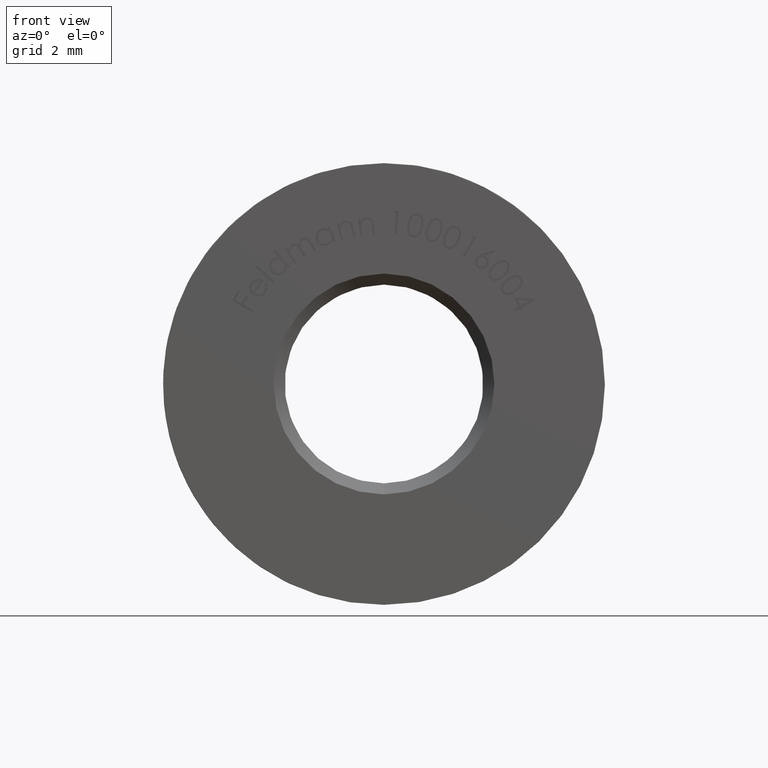
[diagram: clean part render]
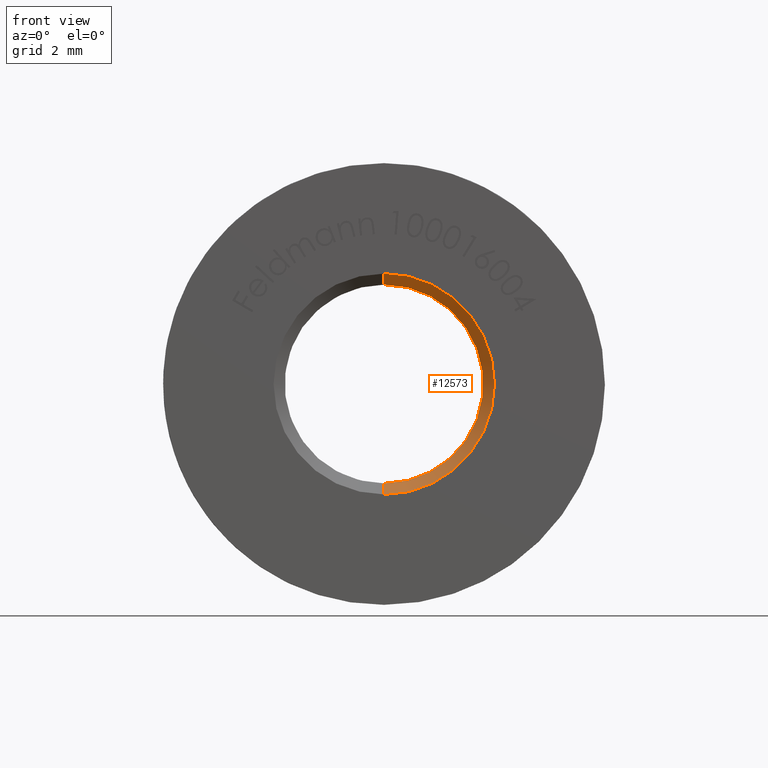
[diagram: same view with one face highlighted and labeled with its STEP entity id]
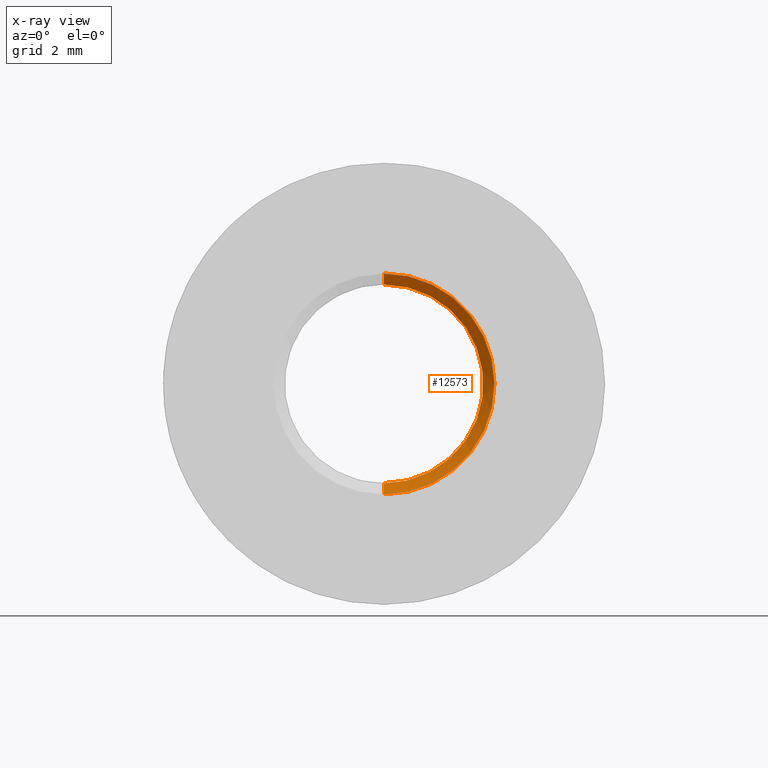
[diagram: x-ray of the same camera — body ghosted, the highlighted face saturated]
A machine part, front view. The second image highlights one B-rep face of the part: STEP entity #12573.
The next image is the same camera in x-ray: the body ghosted, the highlighted face saturated — about 0% of this face is hidden behind the body in this view.
In plain terms, the highlighted conical surface has half-angle 45 deg.
Its self-contained STEP definition (entity closure, byte-faithful):
#54 = VERTEX_POINT ( 'NONE', #4342 ) ;
#890 = CIRCLE ( 'NONE', #1376, 2.499999999999995100 ) ;
#1376 = AXIS2_PLACEMENT_3D ( 'NONE', #10032, #3928, #9063 ) ;
#1396 = AXIS2_PLACEMENT_3D ( 'NONE', #1418, #9548, #1460 ) ;
#1418 = CARTESIAN_POINT ( 'NONE',  ( 0.0000000000000000000, 0.2499999999999950000, 0.0000000000000000000 ) ) ;
#1460 = DIRECTION ( 'NONE',  ( 0.0000000000000000000, 0.0000000000000000000, -1.000000000000000000 ) ) ;
#1598 = VERTEX_POINT ( 'NONE', #5825 ) ;
#1799 = LINE ( 'NONE', #6284, #2732 ) ;
#1890 = VERTEX_POINT ( 'NONE', #5606 ) ;
#1938 = ORIENTED_EDGE ( 'NONE', *, *, #2430, .F. ) ;
#2430 = EDGE_CURVE ( 'NONE', #1598, #54, #11116, .T. ) ;
#2536 = DIRECTION ( 'NONE',  ( 0.0000000000000000000, 0.0000000000000000000, 1.000000000000000000 ) ) ;
#2732 = VECTOR ( 'NONE', #5149, 999.9999999999998900 ) ;
#3039 = FACE_OUTER_BOUND ( 'NONE', #8239, .T. ) ;
#3928 = DIRECTION ( 'NONE',  ( 0.0000000000000000000, 1.000000000000000000, 0.0000000000000000000 ) ) ;
#4339 = VERTEX_POINT ( 'NONE', #5229 ) ;
#4342 = CARTESIAN_POINT ( 'NONE',  ( 2.755455298081544300E-016, 0.2499999999999950000, 2.250000000000000000 ) ) ;
#4823 = ORIENTED_EDGE ( 'NONE', *, *, #10833, .T. ) ;
#5149 = DIRECTION ( 'NONE',  ( 0.0000000000000000000, -0.7071067811865469100, -0.7071067811865482400 ) ) ;
#5229 = CARTESIAN_POINT ( 'NONE',  ( 0.0000000000000000000, 0.0000000000000000000, -2.499999999999995100 ) ) ;
#5606 = CARTESIAN_POINT ( 'NONE',  ( 3.061616997868377200E-016, 0.0000000000000000000, 2.499999999999995100 ) ) ;
#5825 = CARTESIAN_POINT ( 'NONE',  ( 0.0000000000000000000, 0.2499999999999950000, -2.250000000000000000 ) ) ;
#6284 = CARTESIAN_POINT ( 'NONE',  ( 0.0000000000000000000, 0.2499999999999950000, -2.250000000000000000 ) ) ;
#6973 = CARTESIAN_POINT ( 'NONE',  ( 2.755455298081544300E-016, 0.2499999999999950000, 2.250000000000000000 ) ) ;
#6994 = EDGE_CURVE ( 'NONE', #1890, #4339, #890, .T. ) ;
#7205 = AXIS2_PLACEMENT_3D ( 'NONE', #8634, #10571, #2536 ) ;
#7215 = ORIENTED_EDGE ( 'NONE', *, *, #6994, .F. ) ;
#7358 = LINE ( 'NONE', #6973, #7663 ) ;
#7663 = VECTOR ( 'NONE', #12077, 999.9999999999998900 ) ;
#8239 = EDGE_LOOP ( 'NONE', ( #11927, #1938, #4823, #7215 ) ) ;
#8634 = CARTESIAN_POINT ( 'NONE',  ( 0.0000000000000000000, 0.2499999999999950000, 0.0000000000000000000 ) ) ;
#9063 = DIRECTION ( 'NONE',  ( 0.0000000000000000000, 0.0000000000000000000, 1.000000000000000000 ) ) ;
#9548 = DIRECTION ( 'NONE',  ( 0.0000000000000000000, -1.000000000000000000, 0.0000000000000000000 ) ) ;
#10032 = CARTESIAN_POINT ( 'NONE',  ( 0.0000000000000000000, 0.0000000000000000000, 0.0000000000000000000 ) ) ;
#10571 = DIRECTION ( 'NONE',  ( 0.0000000000000000000, -1.000000000000000000, 0.0000000000000000000 ) ) ;
#10833 = EDGE_CURVE ( 'NONE', #1598, #4339, #1799, .T. ) ;
#10882 = CONICAL_SURFACE ( 'NONE', #1396, 2.250000000000000000, 0.7853981633974491700 ) ;
#11116 = CIRCLE ( 'NONE', #7205, 2.250000000000000000 ) ;
#11595 = EDGE_CURVE ( 'NONE', #54, #1890, #7358, .T. ) ;
#11927 = ORIENTED_EDGE ( 'NONE', *, *, #11595, .F. ) ;
#12077 = DIRECTION ( 'NONE',  ( 8.659560562354941500E-017, -0.7071067811865469100, 0.7071067811865482400 ) ) ;
#12573 = ADVANCED_FACE ( 'NONE', ( #3039 ), #10882, .F. ) ;